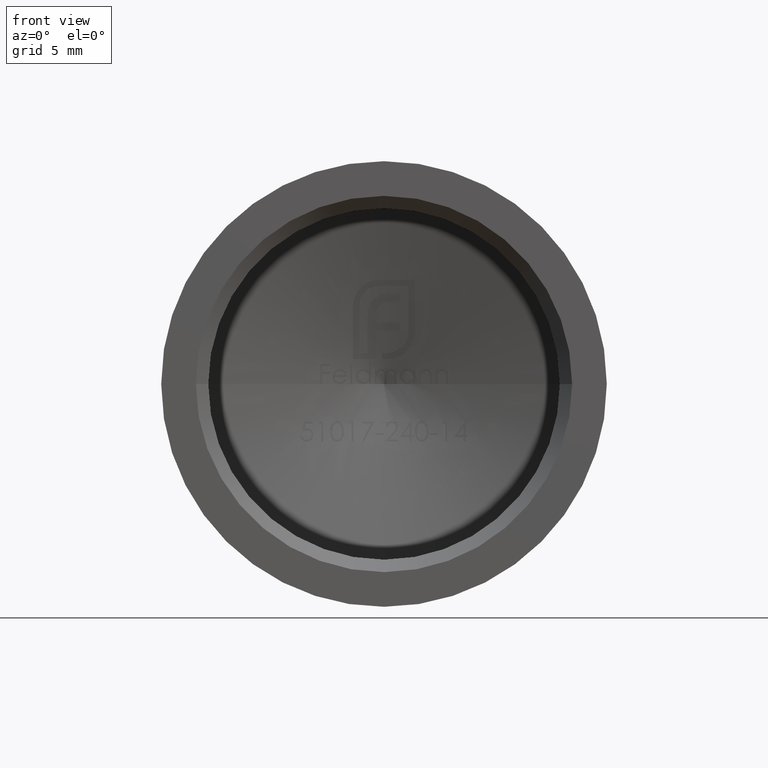
[diagram: clean part render]
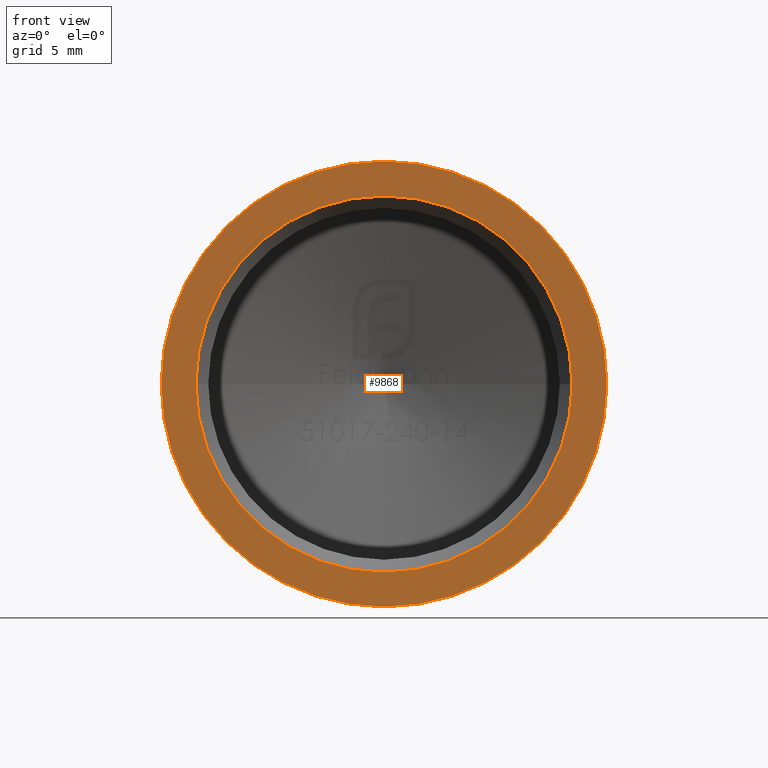
[diagram: same view with one face highlighted and labeled with its STEP entity id]
A machine part, front view. The second image highlights one B-rep face of the part: STEP entity #9868.
In plain terms, the highlighted planar face has unit normal (-0, 1, 0).
Its self-contained STEP definition (entity closure, byte-faithful):
#64 = FACE_OUTER_BOUND ( 'NONE', #8972, .T. ) ;
#690 = CARTESIAN_POINT ( 'NONE',  ( 9.000000000000000000, 1.795400996330743280E-16, 1.102182119232617714E-15 ) ) ;
#781 = DIRECTION ( 'NONE',  ( -1.000000000000000000, -1.994889995923048534E-17, 0.000000000000000000 ) ) ;
#1064 = ORIENTED_EDGE ( 'NONE', *, *, #9787, .F. ) ;
#1321 = FACE_BOUND ( 'NONE', #8378, .T. ) ;
#1816 = AXIS2_PLACEMENT_3D ( 'NONE', #3746, #8834, #781 ) ;
#1974 = EDGE_CURVE ( 'NONE', #6888, #9644, #5735, .T. ) ;
#3028 = DIRECTION ( 'NONE',  ( -1.000000000000000000, -1.994889995923048226E-17, 0.000000000000000000 ) ) ;
#3205 = CARTESIAN_POINT ( 'NONE',  ( 7.599999999999998757, -8.977004981653699145E-18, 0.000000000000000000 ) ) ;
#3285 = VERTEX_POINT ( 'NONE', #10981 ) ;
#3331 = CIRCLE ( 'NONE', #1816, 7.599999999999998757 ) ;
#3450 = AXIS2_PLACEMENT_3D ( 'NONE', #7678, #3659, #10559 ) ;
#3511 = CIRCLE ( 'NONE', #3450, 9.000000000000000000 ) ;
#3659 = DIRECTION ( 'NONE',  ( -1.994889995923048226E-17, 1.000000000000000000, -0.000000000000000000 ) ) ;
#3746 = CARTESIAN_POINT ( 'NONE',  ( 2.992334993884571723E-16, -1.605886446718053754E-16, 0.000000000000000000 ) ) ;
#3942 = CARTESIAN_POINT ( 'NONE',  ( -9.000000000000000000, -1.795400996330743280E-16, 0.000000000000000000 ) ) ;
#4237 = DIRECTION ( 'NONE',  ( -1.994889995923048226E-17, 1.000000000000000000, -0.000000000000000000 ) ) ;
#4910 = CIRCLE ( 'NONE', #12891, 7.599999999999998757 ) ;
#5042 = EDGE_CURVE ( 'NONE', #8169, #3285, #4910, .T. ) ;
#5499 = EDGE_CURVE ( 'NONE', #3285, #8169, #3331, .T. ) ;
#5557 = DIRECTION ( 'NONE',  ( -1.000000000000000000, -1.994889995923048226E-17, 0.000000000000000000 ) ) ;
#5735 = CIRCLE ( 'NONE', #9312, 9.000000000000000000 ) ;
#6093 = DIRECTION ( 'NONE',  ( -1.000000000000000000, -1.994889995923048534E-17, 0.000000000000000000 ) ) ;
#6650 = DIRECTION ( 'NONE',  ( -1.994889995923048226E-17, 1.000000000000000000, 0.000000000000000000 ) ) ;
#6888 = VERTEX_POINT ( 'NONE', #690 ) ;
#7049 = CARTESIAN_POINT ( 'NONE',  ( 2.992334993884571723E-16, -1.605886446718053754E-16, 0.000000000000000000 ) ) ;
#7167 = ORIENTED_EDGE ( 'NONE', *, *, #1974, .F. ) ;
#7507 = AXIS2_PLACEMENT_3D ( 'NONE', #12557, #6650, #5557 ) ;
#7678 = CARTESIAN_POINT ( 'NONE',  ( 2.992334993884571723E-16, 0.000000000000000000, 0.000000000000000000 ) ) ;
#8057 = CARTESIAN_POINT ( 'NONE',  ( 2.992334993884571723E-16, 0.000000000000000000, 0.000000000000000000 ) ) ;
#8169 = VERTEX_POINT ( 'NONE', #3205 ) ;
#8378 = EDGE_LOOP ( 'NONE', ( #8625, #11715 ) ) ;
#8625 = ORIENTED_EDGE ( 'NONE', *, *, #5042, .T. ) ;
#8834 = DIRECTION ( 'NONE',  ( -1.994889995923048226E-17, 1.000000000000000000, -0.000000000000000000 ) ) ;
#8972 = EDGE_LOOP ( 'NONE', ( #1064, #7167 ) ) ;
#9069 = DIRECTION ( 'NONE',  ( -1.994889995923048226E-17, 1.000000000000000000, -0.000000000000000000 ) ) ;
#9312 = AXIS2_PLACEMENT_3D ( 'NONE', #8057, #9069, #3028 ) ;
#9644 = VERTEX_POINT ( 'NONE', #3942 ) ;
#9787 = EDGE_CURVE ( 'NONE', #9644, #6888, #3511, .T. ) ;
#9868 = ADVANCED_FACE ( 'NONE', ( #1321, #64 ), #10698, .F. ) ;
#10559 = DIRECTION ( 'NONE',  ( -1.000000000000000000, -1.994889995923048226E-17, 0.000000000000000000 ) ) ;
#10698 = PLANE ( 'NONE',  #7507 ) ;
#10981 = CARTESIAN_POINT ( 'NONE',  ( -7.599999999999998757, -3.122002843619570455E-16, 9.307315673519883487E-16 ) ) ;
#11715 = ORIENTED_EDGE ( 'NONE', *, *, #5499, .T. ) ;
#12557 = CARTESIAN_POINT ( 'NONE',  ( 7.099999999999999645, -1.895145496126896493E-17, 0.000000000000000000 ) ) ;
#12891 = AXIS2_PLACEMENT_3D ( 'NONE', #7049, #4237, #6093 ) ;